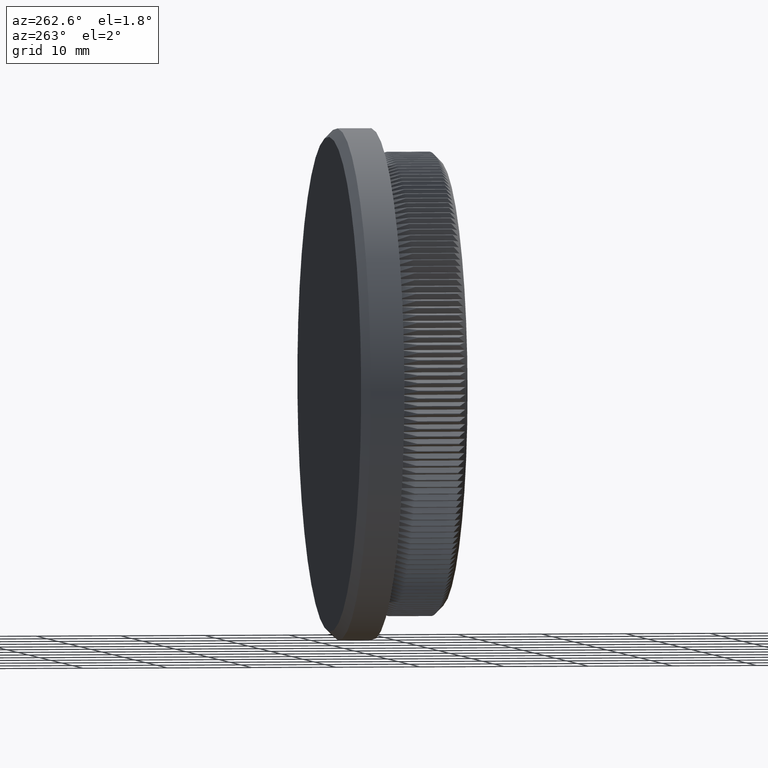
[diagram: clean part render]
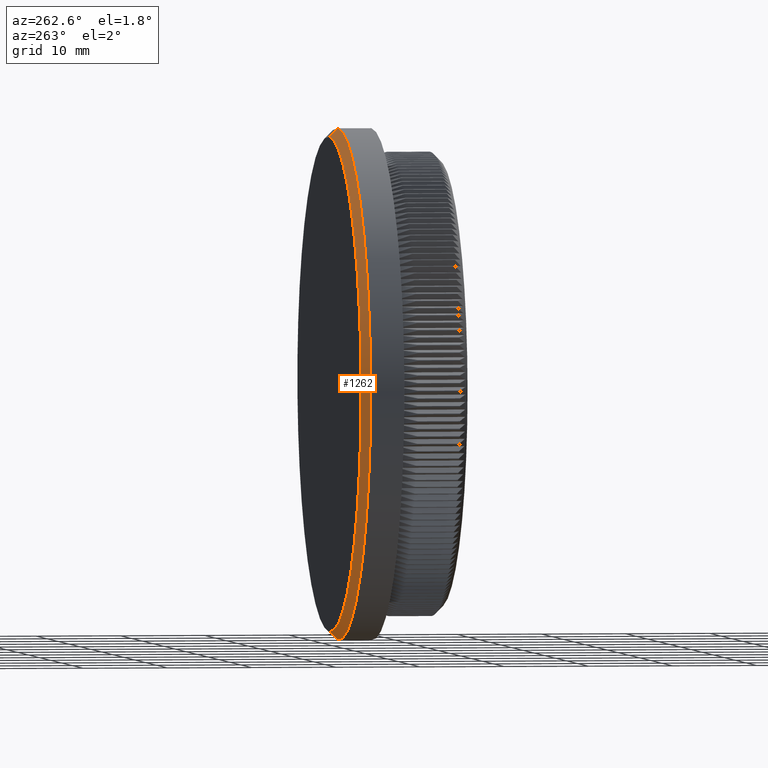
[diagram: same view with one face highlighted and labeled with its STEP entity id]
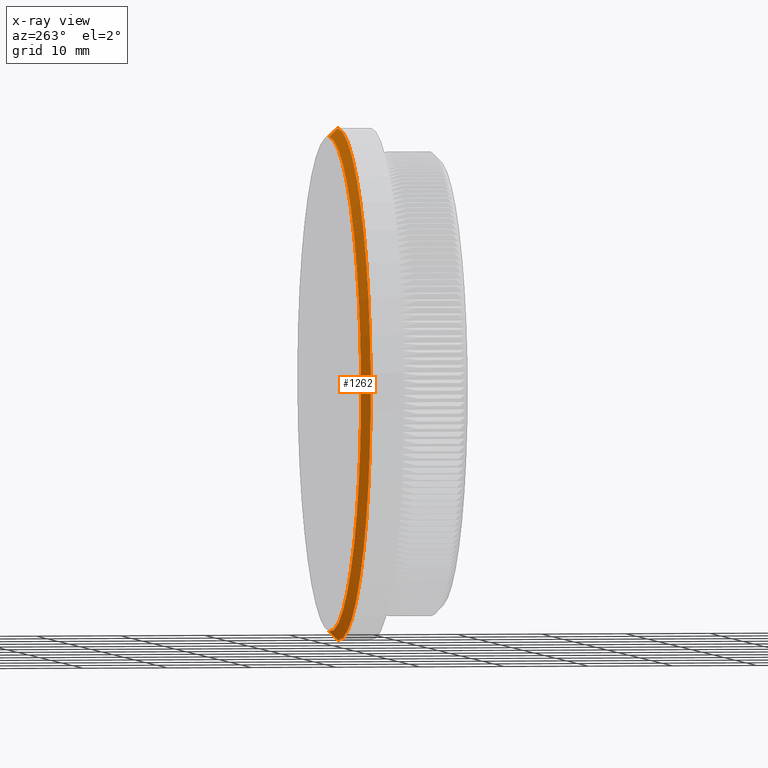
[diagram: x-ray of the same camera — body ghosted, the highlighted face saturated]
A machine part, auxiliary view. The second image highlights one B-rep face of the part: STEP entity #1262.
The next image is the same camera in x-ray: the body ghosted, the highlighted face saturated — about 0% of this face is hidden behind the body in this view.
In plain terms, the highlighted conical surface has half-angle 45 deg.
Its self-contained STEP definition (entity closure, byte-faithful):
#43 = DIRECTION ( 'NONE',  ( -0.000000000000000000, -1.000000000000000000, -0.000000000000000000 ) ) ;
#200 = AXIS2_PLACEMENT_3D ( 'NONE', #39306, #13893, #27679 ) ;
#1199 = CARTESIAN_POINT ( 'NONE',  ( 0.000000000000000000, 11.99999999999998757, -30.14999999999999503 ) ) ;
#1262 = ADVANCED_FACE ( 'NONE', ( #25646 ), #17085, .T. ) ;
#1588 = EDGE_LOOP ( 'NONE', ( #7059, #9512, #17881, #20175 ) ) ;
#3009 = CARTESIAN_POINT ( 'NONE',  ( 3.692310099429269608E-15, 11.99999999999998757, 30.14999999999999503 ) ) ;
#3608 = VERTEX_POINT ( 'NONE', #23192 ) ;
#3898 = EDGE_CURVE ( 'NONE', #3608, #5776, #14422, .T. ) ;
#5675 = CARTESIAN_POINT ( 'NONE',  ( 3.631077759471901245E-15, 13.00000000000000000, 29.14999999999998437 ) ) ;
#5776 = VERTEX_POINT ( 'NONE', #5675 ) ;
#7059 = ORIENTED_EDGE ( 'NONE', *, *, #13991, .F. ) ;
#7348 = EDGE_CURVE ( 'NONE', #3608, #25975, #35696, .T. ) ;
#9512 = ORIENTED_EDGE ( 'NONE', *, *, #3898, .F. ) ;
#9740 = EDGE_CURVE ( 'NONE', #36743, #25975, #29040, .T. ) ;
#13893 = DIRECTION ( 'NONE',  ( -0.000000000000000000, -1.000000000000000000, -0.000000000000000000 ) ) ;
#13991 = EDGE_CURVE ( 'NONE', #5776, #36743, #29277, .T. ) ;
#14422 = CIRCLE ( 'NONE', #20517, 29.14999999999998437 ) ;
#14733 = VECTOR ( 'NONE', #16024, 1000.000000000000114 ) ;
#16024 = DIRECTION ( 'NONE',  ( 8.659560562354932858E-17, -0.7071067811865474617, 0.7071067811865474617 ) ) ;
#17085 = CONICAL_SURFACE ( 'NONE', #200, 30.14999999999999503, 0.7853981633974482790 ) ;
#17881 = ORIENTED_EDGE ( 'NONE', *, *, #7348, .T. ) ;
#17996 = DIRECTION ( 'NONE',  ( 0.000000000000000000, 1.000000000000000000, 0.000000000000000000 ) ) ;
#19234 = DIRECTION ( 'NONE',  ( 0.000000000000000000, 0.000000000000000000, 1.000000000000000000 ) ) ;
#20066 = CARTESIAN_POINT ( 'NONE',  ( 3.692310099429269608E-15, 11.99999999999998757, 30.14999999999999503 ) ) ;
#20175 = ORIENTED_EDGE ( 'NONE', *, *, #9740, .F. ) ;
#20517 = AXIS2_PLACEMENT_3D ( 'NONE', #37470, #17996, #40412 ) ;
#21765 = CARTESIAN_POINT ( 'NONE',  ( 0.000000000000000000, 11.99999999999998757, -30.14999999999999503 ) ) ;
#23192 = CARTESIAN_POINT ( 'NONE',  ( 0.000000000000000000, 13.00000000000000000, -29.14999999999998437 ) ) ;
#25646 = FACE_OUTER_BOUND ( 'NONE', #1588, .T. ) ;
#25975 = VERTEX_POINT ( 'NONE', #21765 ) ;
#27679 = DIRECTION ( 'NONE',  ( 0.000000000000000000, 0.000000000000000000, -1.000000000000000000 ) ) ;
#29040 = CIRCLE ( 'NONE', #38398, 30.14999999999999503 ) ;
#29277 = LINE ( 'NONE', #3009, #14733 ) ;
#31687 = VECTOR ( 'NONE', #33041, 1000.000000000000114 ) ;
#33041 = DIRECTION ( 'NONE',  ( 0.000000000000000000, -0.7071067811865474617, -0.7071067811865474617 ) ) ;
#35696 = LINE ( 'NONE', #1199, #31687 ) ;
#36743 = VERTEX_POINT ( 'NONE', #20066 ) ;
#37470 = CARTESIAN_POINT ( 'NONE',  ( 0.000000000000000000, 13.00000000000000000, 0.000000000000000000 ) ) ;
#38398 = AXIS2_PLACEMENT_3D ( 'NONE', #38863, #43, #19234 ) ;
#38863 = CARTESIAN_POINT ( 'NONE',  ( 0.000000000000000000, 11.99999999999998757, 0.000000000000000000 ) ) ;
#39306 = CARTESIAN_POINT ( 'NONE',  ( 0.000000000000000000, 11.99999999999998757, 0.000000000000000000 ) ) ;
#40412 = DIRECTION ( 'NONE',  ( 0.000000000000000000, 0.000000000000000000, 1.000000000000000000 ) ) ;